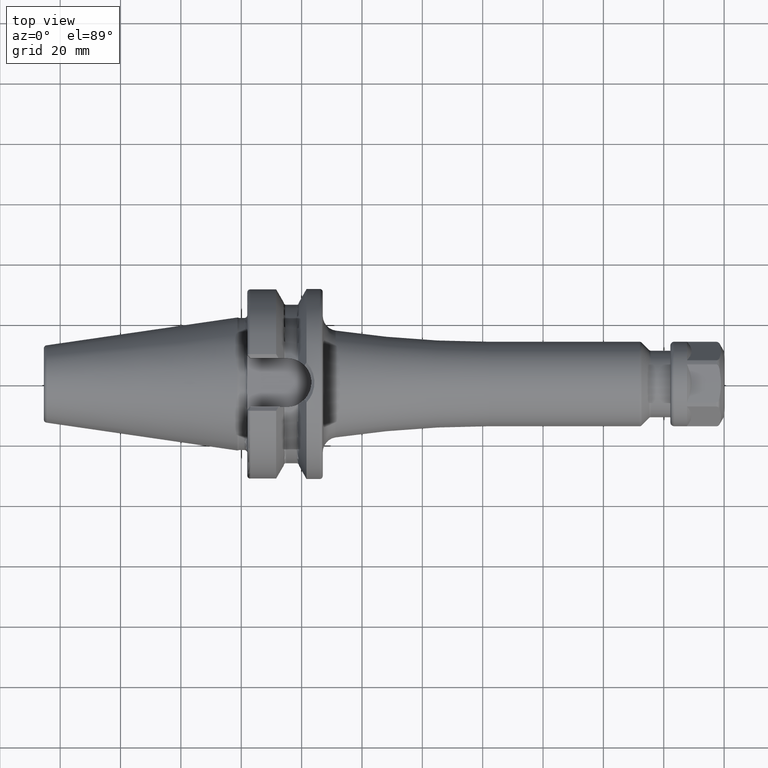
[diagram: clean part render]
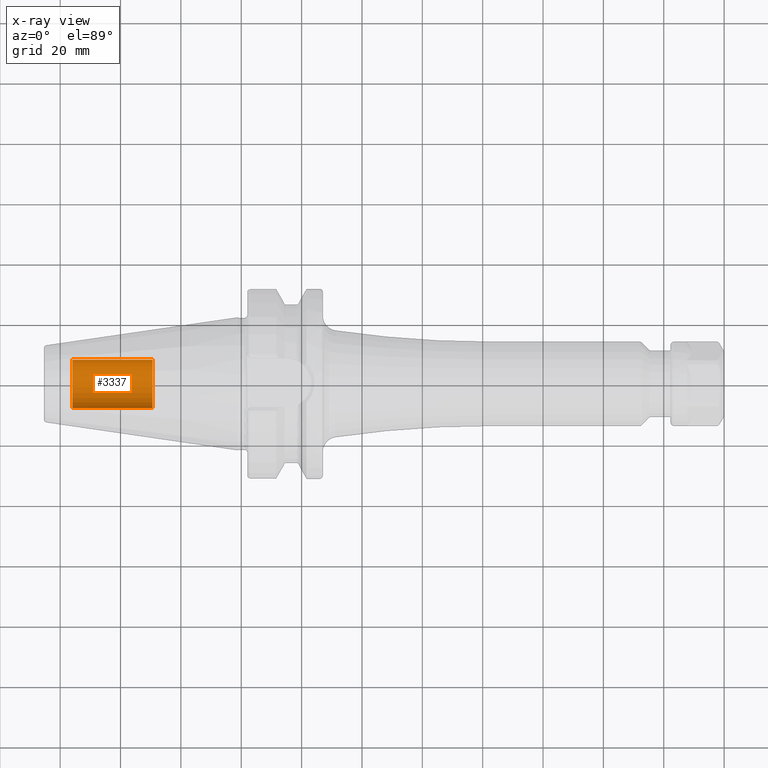
[diagram: x-ray — body ghosted, one internal face saturated and labeled with its STEP entity id]
A machine part, top view, then the same camera in x-ray: the body is ghosted and one INTERNAL B-rep face — a face not visible from any outside direction — is saturated and labeled: STEP entity #3337.
In plain terms, the highlighted cylindrical surface (edge-blend (fillet) strip) has radius 8.0028 mm, axis along (1, 0, 0).
Its self-contained STEP definition (entity closure, byte-faithful):
#3272=CARTESIAN_POINT('',(-5.595E1,0.E0,0.E0));
#3273=DIRECTION('',(-1.E0,0.E0,0.E0));
#3274=DIRECTION('',(0.E0,1.E0,0.E0));
#3275=AXIS2_PLACEMENT_3D('',#3272,#3273,#3274);
#3277=DIRECTION('',(1.E0,0.E0,0.E0));
#3278=VECTOR('',#3277,2.655E1);
#3279=CARTESIAN_POINT('',(-5.595E1,-8.00275E0,0.E0));
#3280=LINE('',#3279,#3278);
#3286=DIRECTION('',(1.E0,0.E0,0.E0));
#3287=VECTOR('',#3286,2.655E1);
#3288=CARTESIAN_POINT('',(-5.595E1,8.00275E0,0.E0));
#3289=LINE('',#3288,#3287);
#3295=CARTESIAN_POINT('',(-2.94E1,0.E0,0.E0));
#3296=DIRECTION('',(1.E0,0.E0,0.E0));
#3297=DIRECTION('',(0.E0,-1.E0,0.E0));
#3298=AXIS2_PLACEMENT_3D('',#3295,#3296,#3297);
#3310=CARTESIAN_POINT('',(-5.595E1,8.00275E0,0.E0));
#3311=CARTESIAN_POINT('',(-5.595E1,-8.00275E0,0.E0));
#3312=VERTEX_POINT('',#3310);
#3313=VERTEX_POINT('',#3311);
#3314=CARTESIAN_POINT('',(-2.94E1,8.00275E0,0.E0));
#3315=CARTESIAN_POINT('',(-2.94E1,-8.00275E0,0.E0));
#3316=VERTEX_POINT('',#3314);
#3317=VERTEX_POINT('',#3315);
#3322=CARTESIAN_POINT('',(-5.595E1,0.E0,0.E0));
#3323=DIRECTION('',(1.E0,0.E0,0.E0));
#3324=DIRECTION('',(0.E0,1.E0,0.E0));
#3325=AXIS2_PLACEMENT_3D('',#3322,#3323,#3324);
#3326=CYLINDRICAL_SURFACE('',#3325,8.00275E0);
#3328=ORIENTED_EDGE('',*,*,#3327,.T.);
#3330=ORIENTED_EDGE('',*,*,#3329,.T.);
#3332=ORIENTED_EDGE('',*,*,#3331,.T.);
#3334=ORIENTED_EDGE('',*,*,#3333,.F.);
#3335=EDGE_LOOP('',(#3328,#3330,#3332,#3334));
#3336=FACE_OUTER_BOUND('',#3335,.F.);
#3337=ADVANCED_FACE('',(#3336),#3326,.T.);
#3276=CIRCLE('',#3275,8.00275E0);
#3299=CIRCLE('',#3298,8.00275E0);
#3327=EDGE_CURVE('',#3312,#3313,#3276,.T.);
#3329=EDGE_CURVE('',#3313,#3317,#3280,.T.);
#3331=EDGE_CURVE('',#3317,#3316,#3299,.T.);
#3333=EDGE_CURVE('',#3312,#3316,#3289,.T.);